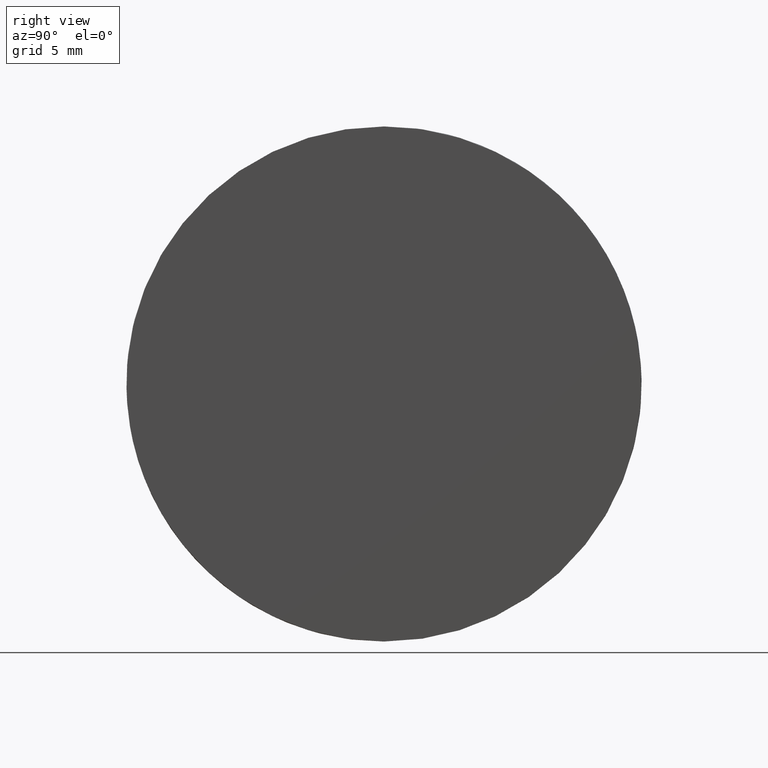
[diagram: clean part render]
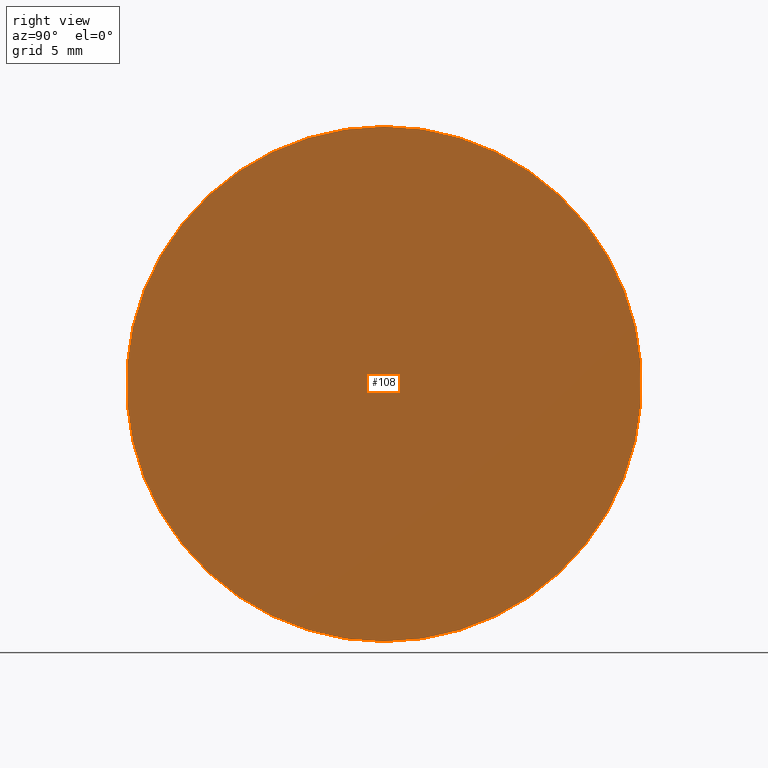
[diagram: same view with one face highlighted and labeled with its STEP entity id]
A machine part, right view. The second image highlights one B-rep face of the part: STEP entity #108.
In plain terms, the highlighted planar face has unit normal (1, 0, -0).
Its self-contained STEP definition (entity closure, byte-faithful):
#5 = DIRECTION ( 'NONE',  ( 1.000000000000000000, -2.465190328815661900E-032, -2.510324564891253900E-016 ) ) ;
#12 = CIRCLE ( 'NONE', #94, 12.50000000000000500 ) ;
#13 = EDGE_CURVE ( 'NONE', #32, #105, #12, .T. ) ;
#16 = PLANE ( 'NONE',  #87 ) ;
#20 = ORIENTED_EDGE ( 'NONE', *, *, #13, .T. ) ;
#24 = ORIENTED_EDGE ( 'NONE', *, *, #232, .T. ) ;
#32 = VERTEX_POINT ( 'NONE', #211 ) ;
#34 = DIRECTION ( 'NONE',  ( 1.000000000000000000, -2.465190328815661900E-032, -2.510324564891253900E-016 ) ) ;
#35 = AXIS2_PLACEMENT_3D ( 'NONE', #68, #5, #84 ) ;
#66 = CARTESIAN_POINT ( 'NONE',  ( -57.02479566514872300, 25.00000000000000000, -12.49999999999999300 ) ) ;
#68 = CARTESIAN_POINT ( 'NONE',  ( -57.02479566514872300, 12.50000000000000000, 1.582756028049823600E-014 ) ) ;
#80 = CARTESIAN_POINT ( 'NONE',  ( -57.02479566514872300, 12.50000000000000000, 1.582756028049823600E-014 ) ) ;
#84 = DIRECTION ( 'NONE',  ( 0.0000000000000000000, 0.0000000000000000000, -1.000000000000000000 ) ) ;
#87 = AXIS2_PLACEMENT_3D ( 'NONE', #66, #109, #125 ) ;
#94 = AXIS2_PLACEMENT_3D ( 'NONE', #80, #34, #103 ) ;
#103 = DIRECTION ( 'NONE',  ( 0.0000000000000000000, 0.0000000000000000000, -1.000000000000000000 ) ) ;
#105 = VERTEX_POINT ( 'NONE', #167 ) ;
#108 = ADVANCED_FACE ( 'NONE', ( #214 ), #16, .T. ) ;
#109 = DIRECTION ( 'NONE',  ( 1.000000000000000000, 0.0000000000000000000, -2.775557561562891800E-016 ) ) ;
#125 = DIRECTION ( 'NONE',  ( -2.775557561562891800E-016, 0.0000000000000000000, -1.000000000000000000 ) ) ;
#139 = CIRCLE ( 'NONE', #35, 12.50000000000000500 ) ;
#167 = CARTESIAN_POINT ( 'NONE',  ( -57.02479566514872300, 12.50000000000000000, -12.49999999999999100 ) ) ;
#200 = EDGE_LOOP ( 'NONE', ( #24, #20 ) ) ;
#211 = CARTESIAN_POINT ( 'NONE',  ( -57.02479566514872300, 12.50000000000000200, 12.50000000000002100 ) ) ;
#214 = FACE_OUTER_BOUND ( 'NONE', #200, .T. ) ;
#232 = EDGE_CURVE ( 'NONE', #105, #32, #139, .T. ) ;